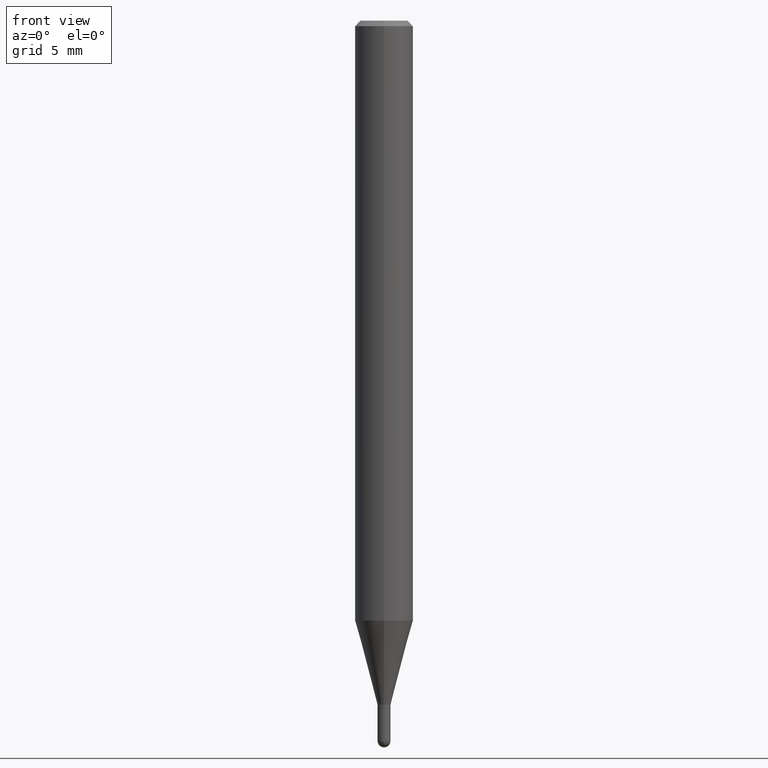
[diagram: clean part render]
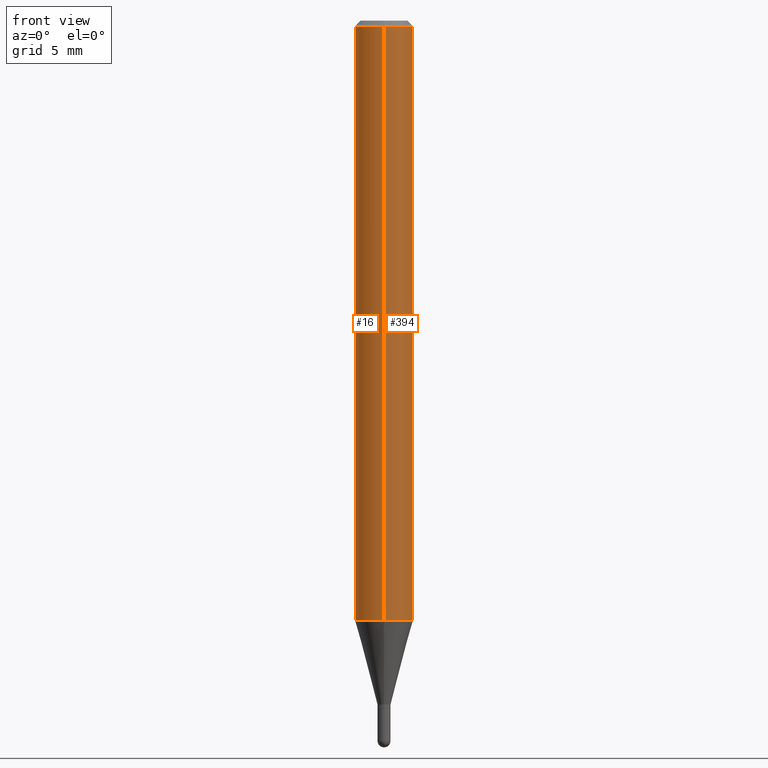
[diagram: same view with one multi-face feature highlighted, each face labeled with its STEP entity id]
A machine part, front view. The highlighted faces form ONE feature: a constant-radius fillet chain: 2 tangent blend faces with common blend radius 2.0002 mm. The faces share edges in the B-rep.
Their STEP definitions:
[1] entity #16 (Cylinder):
#16 = ADVANCED_FACE ( 'NONE', ( #335 ), #100, .T. ) ;
#17 = CARTESIAN_POINT ( 'NONE',  ( -5.499083108677933457E-16, -0.07875000000000000056, 2.749564300221841855E-16 ) ) ;
#18 = CIRCLE ( 'NONE', #436, 0.07875000000000000056 ) ;
#22 = VERTEX_POINT ( 'NONE', #145 ) ;
#84 = CARTESIAN_POINT ( 'NONE',  ( 3.668172955248934329E-31, -5.237265333755907413E-17, -0.01500000000000005322 ) ) ;
#91 = DIRECTION ( 'NONE',  ( -6.982962677686264344E-15, -1.000000000000000000, 3.496114991891765576E-15 ) ) ;
#100 = CYLINDRICAL_SURFACE ( 'NONE', #261, 0.07875000000000000056 ) ;
#123 = DIRECTION ( 'NONE',  ( -2.445448636832614315E-29, 3.491510222503925933E-15, 1.000000000000000000 ) ) ;
#129 = DIRECTION ( 'NONE',  ( -2.445448636832614595E-29, 3.491510222503925539E-15, 1.000000000000000000 ) ) ;
#137 = CARTESIAN_POINT ( 'NONE',  ( -5.499083108677930499E-16, -0.07875000000000004219, -0.01499999999999977740 ) ) ;
#140 = DIRECTION ( 'NONE',  ( -2.445448636832614315E-29, 3.491510222503925933E-15, 1.000000000000000000 ) ) ;
#145 = CARTESIAN_POINT ( 'NONE',  ( -5.499083108677538040E-16, -0.07875000000000566269, -1.624658298197919404 ) ) ;
#155 = LINE ( 'NONE', #473, #340 ) ;
#156 = VERTEX_POINT ( 'NONE', #160 ) ;
#160 = CARTESIAN_POINT ( 'NONE',  ( 5.595524044111181461E-16, 0.07874999999999431066, -1.624658298197919848 ) ) ;
#181 = VERTEX_POINT ( 'NONE', #424 ) ;
#206 = EDGE_CURVE ( 'NONE', #156, #181, #155, .T. ) ;
#207 = CIRCLE ( 'NONE', #372, 0.07875000000000000056 ) ;
#221 = VECTOR ( 'NONE', #129, 39.37007874015748143 ) ;
#224 = DIRECTION ( 'NONE',  ( -2.445448636832614595E-29, 3.491510222503925539E-15, 1.000000000000000000 ) ) ;
#261 = AXIS2_PLACEMENT_3D ( 'NONE', #418, #140, #341 ) ;
#263 = DIRECTION ( 'NONE',  ( -6.982962677686264344E-15, -1.000000000000000000, 3.469013325287953293E-15 ) ) ;
#316 = ORIENTED_EDGE ( 'NONE', *, *, #379, .T. ) ;
#324 = LINE ( 'NONE', #17, #221 ) ;
#335 = FACE_OUTER_BOUND ( 'NONE', #380, .T. ) ;
#340 = VECTOR ( 'NONE', #224, 39.37007874015748143 ) ;
#341 = DIRECTION ( 'NONE',  ( -6.982962677686264344E-15, -1.000000000000000000, 3.491510222503926328E-15 ) ) ;
#352 = ORIENTED_EDGE ( 'NONE', *, *, #471, .T. ) ;
#366 = EDGE_CURVE ( 'NONE', #181, #421, #18, .T. ) ;
#372 = AXIS2_PLACEMENT_3D ( 'NONE', #423, #384, #263 ) ;
#375 = ORIENTED_EDGE ( 'NONE', *, *, #366, .F. ) ;
#379 = EDGE_CURVE ( 'NONE', #22, #421, #324, .T. ) ;
#380 = EDGE_LOOP ( 'NONE', ( #512, #352, #316, #375 ) ) ;
#384 = DIRECTION ( 'NONE',  ( -2.445448636832614315E-29, 3.491510222503925933E-15, 1.000000000000000000 ) ) ;
#418 = CARTESIAN_POINT ( 'NONE',  ( 0.000000000000000000, 0.000000000000000000, 0.000000000000000000 ) ) ;
#421 = VERTEX_POINT ( 'NONE', #137 ) ;
#423 = CARTESIAN_POINT ( 'NONE',  ( 3.973018420646897209E-29, -5.672511056233867752E-15, -1.624658298197919626 ) ) ;
#424 = CARTESIAN_POINT ( 'NONE',  ( 5.595524044111186392E-16, 0.07874999999999994504, -0.01500000000000032904 ) ) ;
#436 = AXIS2_PLACEMENT_3D ( 'NONE', #84, #123, #91 ) ;
#471 = EDGE_CURVE ( 'NONE', #156, #22, #207, .T. ) ;
#473 = CARTESIAN_POINT ( 'NONE',  ( 5.595524044110787031E-16, 0.07875000000000000056, -2.749564300221841855E-16 ) ) ;
#512 = ORIENTED_EDGE ( 'NONE', *, *, #206, .F. ) ;
[2] entity #394 (Cylinder):
#17 = CARTESIAN_POINT ( 'NONE',  ( -5.499083108677933457E-16, -0.07875000000000000056, 2.749564300221841855E-16 ) ) ;
#22 = VERTEX_POINT ( 'NONE', #145 ) ;
#37 = ORIENTED_EDGE ( 'NONE', *, *, #62, .T. ) ;
#62 = EDGE_CURVE ( 'NONE', #22, #156, #451, .T. ) ;
#65 = ORIENTED_EDGE ( 'NONE', *, *, #135, .F. ) ;
#68 = DIRECTION ( 'NONE',  ( -2.445448636832614315E-29, 3.491510222503925933E-15, 1.000000000000000000 ) ) ;
#77 = CARTESIAN_POINT ( 'NONE',  ( 3.668172955248934329E-31, -5.237265333755907413E-17, -0.01500000000000005322 ) ) ;
#81 = CARTESIAN_POINT ( 'NONE',  ( 3.973018420646897209E-29, -5.672511056233867752E-15, -1.624658298197919626 ) ) ;
#93 = CARTESIAN_POINT ( 'NONE',  ( 0.000000000000000000, 0.000000000000000000, 0.000000000000000000 ) ) ;
#94 = AXIS2_PLACEMENT_3D ( 'NONE', #81, #396, #356 ) ;
#129 = DIRECTION ( 'NONE',  ( -2.445448636832614595E-29, 3.491510222503925539E-15, 1.000000000000000000 ) ) ;
#131 = CYLINDRICAL_SURFACE ( 'NONE', #327, 0.07875000000000000056 ) ;
#135 = EDGE_CURVE ( 'NONE', #421, #181, #407, .T. ) ;
#137 = CARTESIAN_POINT ( 'NONE',  ( -5.499083108677930499E-16, -0.07875000000000004219, -0.01499999999999977740 ) ) ;
#145 = CARTESIAN_POINT ( 'NONE',  ( -5.499083108677538040E-16, -0.07875000000000566269, -1.624658298197919404 ) ) ;
#155 = LINE ( 'NONE', #473, #340 ) ;
#156 = VERTEX_POINT ( 'NONE', #160 ) ;
#160 = CARTESIAN_POINT ( 'NONE',  ( 5.595524044111181461E-16, 0.07874999999999431066, -1.624658298197919848 ) ) ;
#181 = VERTEX_POINT ( 'NONE', #424 ) ;
#185 = DIRECTION ( 'NONE',  ( -6.982962677686264344E-15, -1.000000000000000000, 3.496114991891765576E-15 ) ) ;
#206 = EDGE_CURVE ( 'NONE', #156, #181, #155, .T. ) ;
#221 = VECTOR ( 'NONE', #129, 39.37007874015748143 ) ;
#224 = DIRECTION ( 'NONE',  ( -2.445448636832614595E-29, 3.491510222503925539E-15, 1.000000000000000000 ) ) ;
#239 = DIRECTION ( 'NONE',  ( -2.445448636832614315E-29, 3.491510222503925933E-15, 1.000000000000000000 ) ) ;
#270 = EDGE_LOOP ( 'NONE', ( #37, #357, #65, #480 ) ) ;
#307 = AXIS2_PLACEMENT_3D ( 'NONE', #77, #68, #185 ) ;
#324 = LINE ( 'NONE', #17, #221 ) ;
#327 = AXIS2_PLACEMENT_3D ( 'NONE', #93, #239, #438 ) ;
#328 = FACE_OUTER_BOUND ( 'NONE', #270, .T. ) ;
#340 = VECTOR ( 'NONE', #224, 39.37007874015748143 ) ;
#356 = DIRECTION ( 'NONE',  ( -6.982962677686264344E-15, -1.000000000000000000, 3.469013325287953293E-15 ) ) ;
#357 = ORIENTED_EDGE ( 'NONE', *, *, #206, .T. ) ;
#379 = EDGE_CURVE ( 'NONE', #22, #421, #324, .T. ) ;
#394 = ADVANCED_FACE ( 'NONE', ( #328 ), #131, .T. ) ;
#396 = DIRECTION ( 'NONE',  ( -2.445448636832614315E-29, 3.491510222503925933E-15, 1.000000000000000000 ) ) ;
#407 = CIRCLE ( 'NONE', #307, 0.07875000000000000056 ) ;
#421 = VERTEX_POINT ( 'NONE', #137 ) ;
#424 = CARTESIAN_POINT ( 'NONE',  ( 5.595524044111186392E-16, 0.07874999999999994504, -0.01500000000000032904 ) ) ;
#438 = DIRECTION ( 'NONE',  ( -6.982962677686264344E-15, -1.000000000000000000, 3.491510222503926328E-15 ) ) ;
#451 = CIRCLE ( 'NONE', #94, 0.07875000000000000056 ) ;
#473 = CARTESIAN_POINT ( 'NONE',  ( 5.595524044110787031E-16, 0.07875000000000000056, -2.749564300221841855E-16 ) ) ;
#480 = ORIENTED_EDGE ( 'NONE', *, *, #379, .F. ) ;